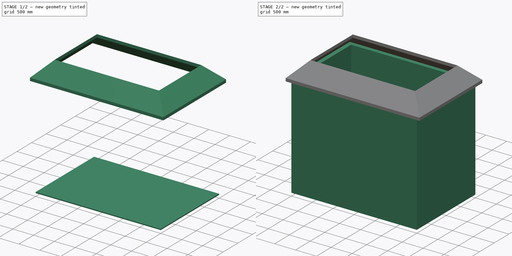
[diagram: build sequence overview — one tinted view per stage of 2, left to right]
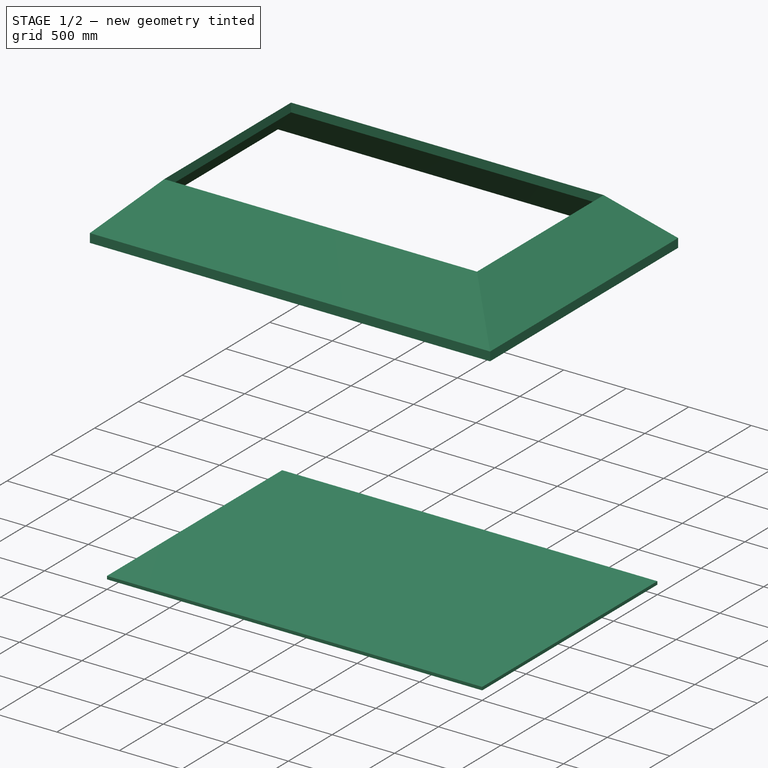
[diagram: stage 1 of 2 — iso view after this stage's code; geometry added in this stage tinted green]
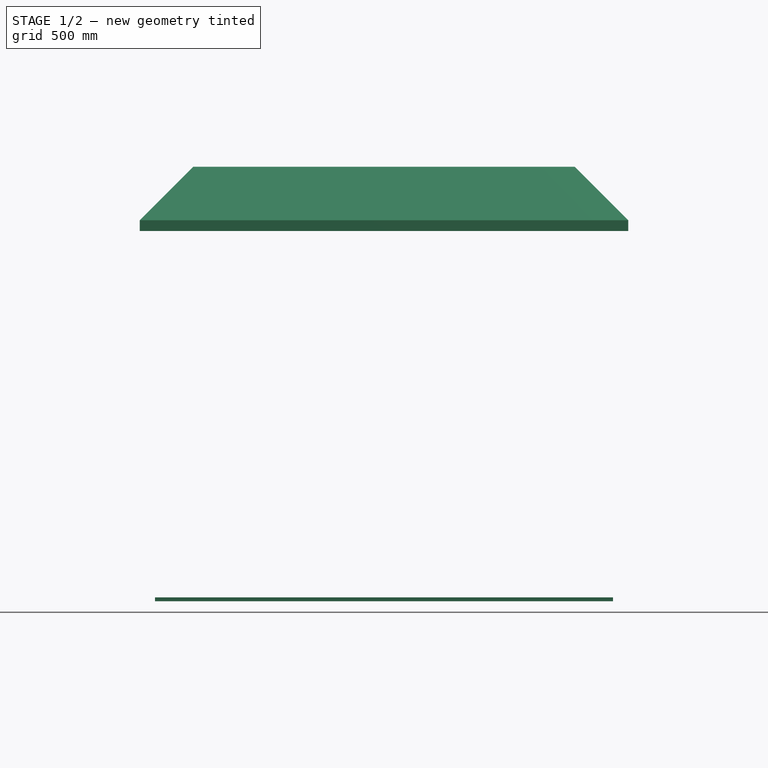
[diagram: stage 1 of 2 — front view after this stage's code; geometry added in this stage tinted green]
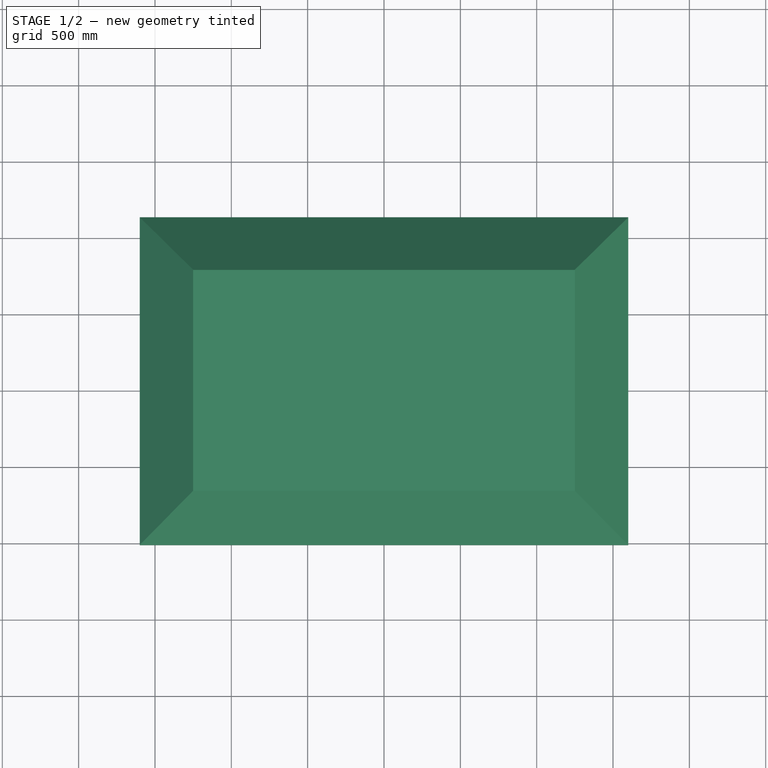
[diagram: stage 1 of 2 — top view after this stage's code; geometry added in this stage tinted green]
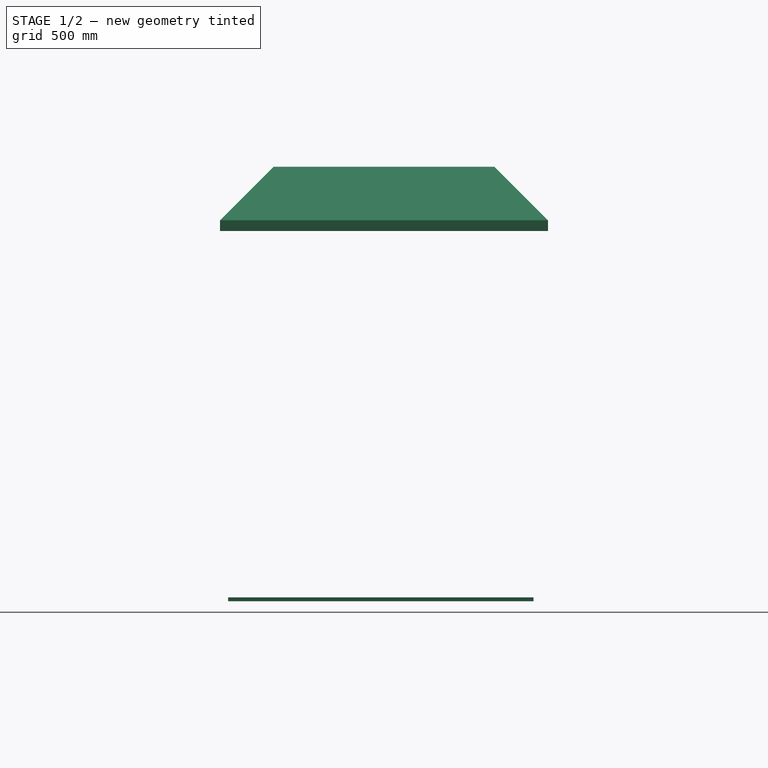
[diagram: stage 1 of 2 — right view after this stage's code; geometry added in this stage tinted green]
FCSTD DOCUMENT  (FreeCAD 0.21R33668 +26 (Git))
Label: LabritDeJardin
License: All rights reserved
LicenseURL: http://en.wikipedia.org/wiki/All_rights_reserved
objects: Part::FeaturePython×3, Sketcher::SketchObject×2, Part::Part2DObjectPython×1
note: 6 computed .brp shape members not serialized (recipe doc carries the construction recipe); baked Part::Feature solids carry a one-line shape summary decoded from their .brp

FEATURE [Sketcher::SketchObject] Sketch
  FullyConstrained = true
  sketch-geometry (4):
    g0: LineSegment StartX=0 StartY=2000 StartZ=0 EndX=3000 EndY=2000 EndZ=0
    g1: LineSegment StartX=3000 StartY=2000 StartZ=0 EndX=3000 EndY=0 EndZ=0
    g2: LineSegment StartX=3000 StartY=0 StartZ=0 EndX=0 EndY=0 EndZ=0
    g3: LineSegment StartX=0 StartY=0 StartZ=0 EndX=0 EndY=2000 EndZ=0
  constraints (11):
    c: Coincident(g0,g1)
    c: Coincident(g1,g2)
    c: Coincident(g2,g3)
    c: Coincident(g3,g0)
    c: Horizontal(g0)
    c: Horizontal(g2)
    c: Vertical(g1)
    c: Vertical(g3)
    c: DistanceX(g0,g0) = 3000
    c: DistanceY(g1,g1) = 2000
    c: Coincident(g2,g-1)
FEATURE [Part::FeaturePython] Structure  # Arch/BIM 13 (typed FeaturePython)
  Base = -> Sketch
  BaseMirror = false
  BaseOffsetX = 0
  BaseOffsetY = 0
  BasePerpendicularToTool = false
  BaseRotation = 0
  ComputedLength = 25
  FaceMaker = 0
  Height = 25
  HorizontalArea = 6000000
  IfcData = attributes={"GlobalId": {"name": "GlobalId", "type": "IfcGloballyUniqueId", "is_enum": false, "enum_values": []}, "Description": {"... (+484 chars omitted),+1 more (map truncated)
  IfcType = 13
  Length = 0
  MoveBase = false
  MoveWithHost = false
  Nodes = (2) [(1500,1000,0),(1500,1000,-25)]
  NodesOffset = 0
  Normal = (0,0,0)
  PerimeterLength = 10000
  PredefinedType = 0
  ToolOffsetFirst = 0
  ToolOffsetLast = 0
  VerticalArea = 250000
  Width = 100
FEATURE [Part::Part2DObjectPython] Rectangle  # Draft 2D object (typed FeaturePython)
  Area = 5.84272e+06
  ChamferSize = 0
  Columns = 1
  FilletRadius = 0
  Height = 1947.57
  Length = 3000
  MakeFace = true
  Placement = pos=(0,47.2886,2500) rot=(0,0,1;0rad)
  Rows = 1
FEATURE [Part::FeaturePython] Roof  # Arch/BIM 113 (typed FeaturePython)
  Angles = [45,45,45,45]
  Base = -> Rectangle
  BorderLength = 18590.3
  Face = 0
  Flip = false
  Heights = [250,250,250,250]
  HorizontalArea = 3.2533e+06
  IdRel = [-1,-1,-1,-1]
  IfcData = attributes={"GlobalId": {"name": "GlobalId", "type": "IfcGloballyUniqueId", "is_enum": false, "enum_values": []}, "Description": {"... (+613 chars omitted),+1 more (map truncated)
  IfcType = 113
  MoveBase = false
  MoveWithHost = false
  Overhang = [100,100,100,100]
  PerimeterLength = 0
  PredefinedType = 11
  RidgeLength = 2424.87
  Runs = [250,250,250,250]
  Thickness = [50,50,50,50]
  VerticalArea = 1.31453e+06
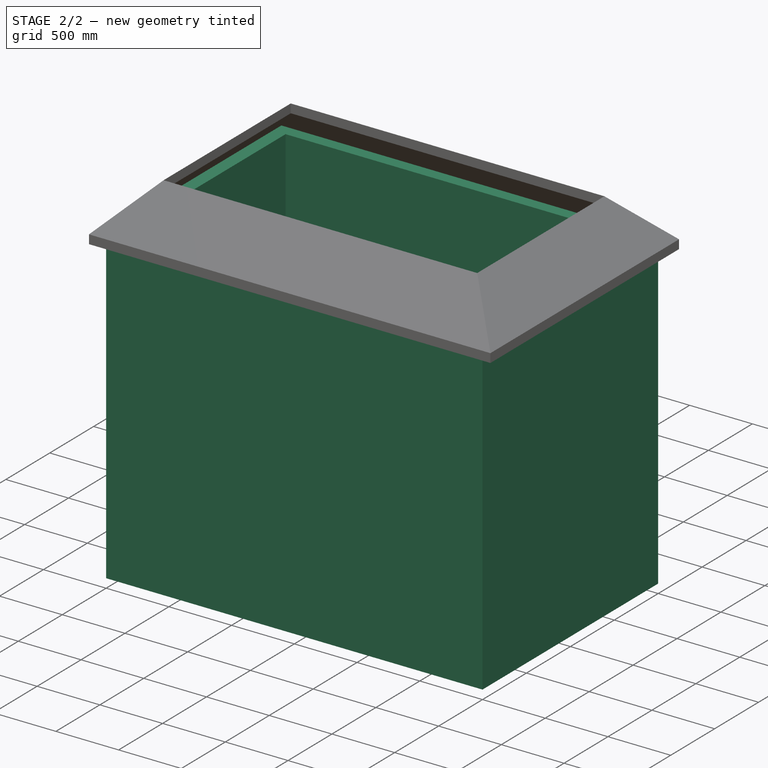
[diagram: stage 2 of 2 — iso view after this stage's code; geometry added in this stage tinted green]
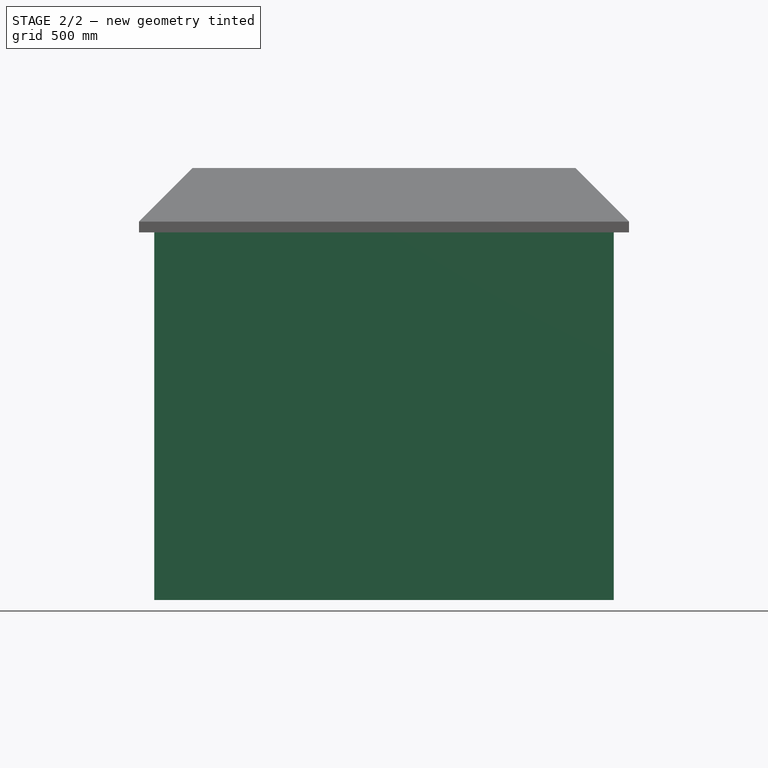
[diagram: stage 2 of 2 — front view after this stage's code; geometry added in this stage tinted green]
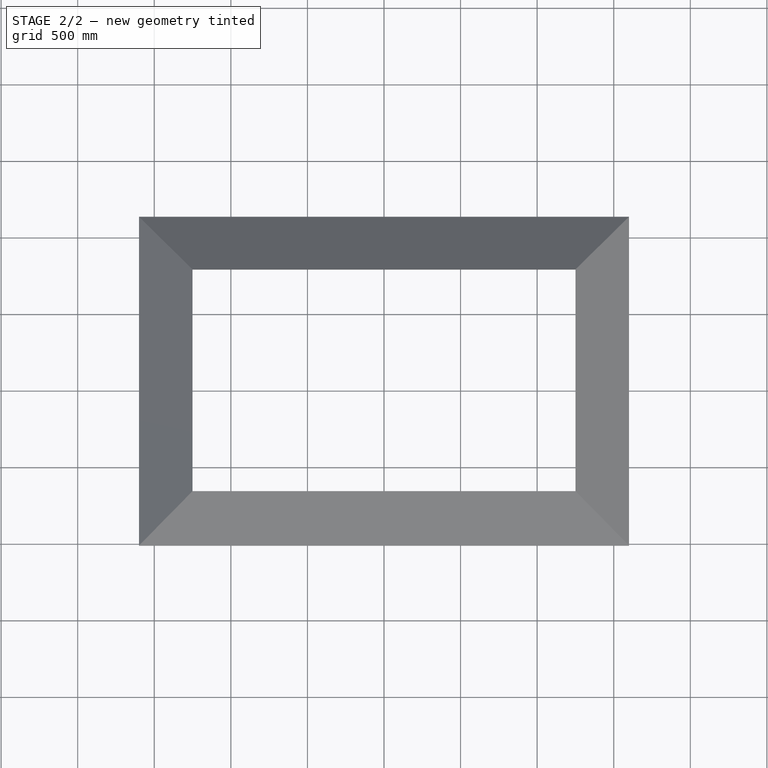
[diagram: stage 2 of 2 — top view after this stage's code; geometry added in this stage tinted green]
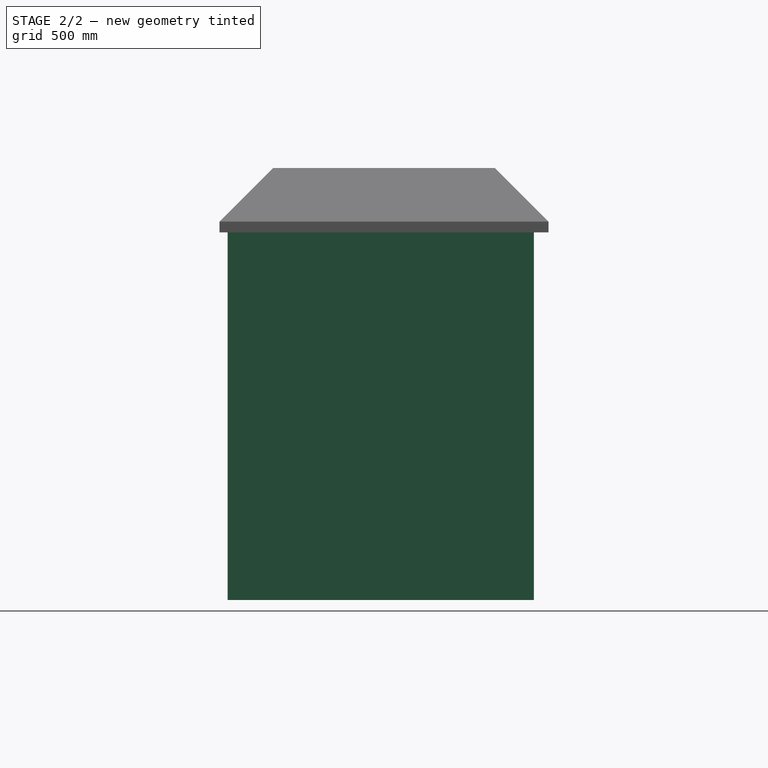
[diagram: stage 2 of 2 — right view after this stage's code; geometry added in this stage tinted green]
FEATURE [Sketcher::SketchObject] Sketch001
  ExternalGeometry = -> [Structure]
  FullyConstrained = true
  MapMode = 5
  Support = -> [Structure]
  sketch-geometry (4):
    g0: LineSegment StartX=0 StartY=2000 StartZ=0 EndX=3000 EndY=2000 EndZ=0
    g1: LineSegment StartX=3000 StartY=2000 StartZ=0 EndX=3000 EndY=0 EndZ=0
    g2: LineSegment StartX=3000 StartY=0 StartZ=0 EndX=0 EndY=0 EndZ=0
    g3: LineSegment StartX=0 StartY=0 StartZ=0 EndX=0 EndY=2000 EndZ=0
  constraints (10):
    c: Coincident(g0,g1)
    c: Coincident(g1,g2)
    c: Coincident(g2,g3)
    c: Coincident(g3,g0)
    c: Horizontal(g0)
    c: Horizontal(g2)
    c: Vertical(g1)
    c: Vertical(g3)
    c: Coincident(g2,g-3)
    c: Coincident(g0,g-4)
FEATURE [Part::FeaturePython] Wall  # Arch/BIM 166 (typed FeaturePython)
  Align = 0
  Area = 25000000
  Base = -> Sketch001
  BlockHeight = 0
  BlockLength = 0
  CountBroken = 0
  CountEntire = 0
  Face = 0
  Height = 2500
  HorizontalArea = 960000
  IfcData = attributes={"GlobalId": {"name": "GlobalId", "type": "IfcGloballyUniqueId", "is_enum": false, "enum_values": []}, "Description": {"... (+533 chars omitted),+1 more (map truncated)
  IfcType = 166
  Joint = 0
  Length = 10000
  MakeBlocks = false
  MoveBase = false
  MoveWithHost = false
  Normal = (0,0,0)
  OffsetFirst = 0
  OffsetSecond = 0
  PerimeterLength = 10000
  PredefinedType = 0
  VerticalArea = 48000000
  Width = 100
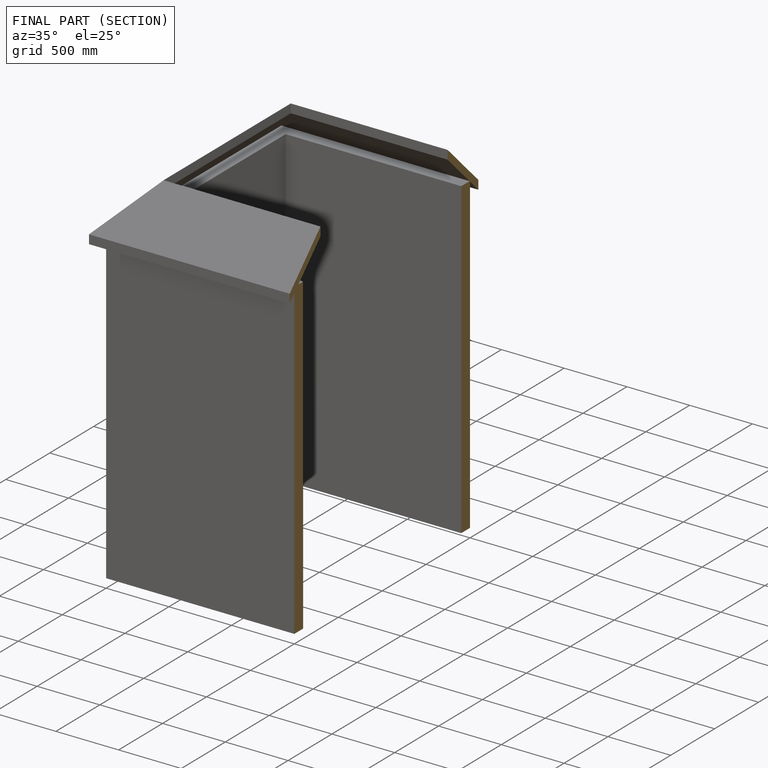
[diagram: finished part — half-section view (interior)]
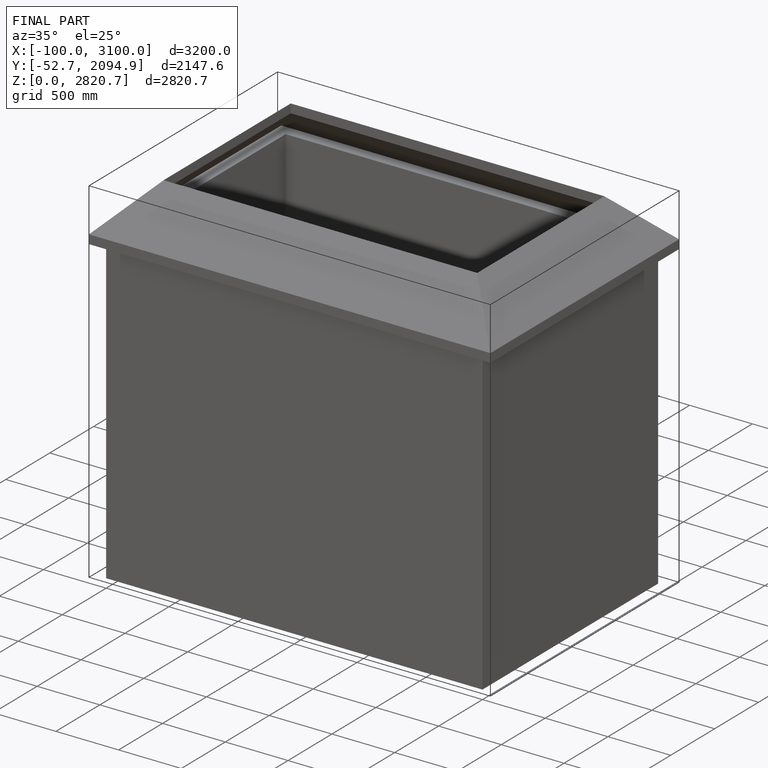
[diagram: finished part — iso view with bounding-box wireframe]
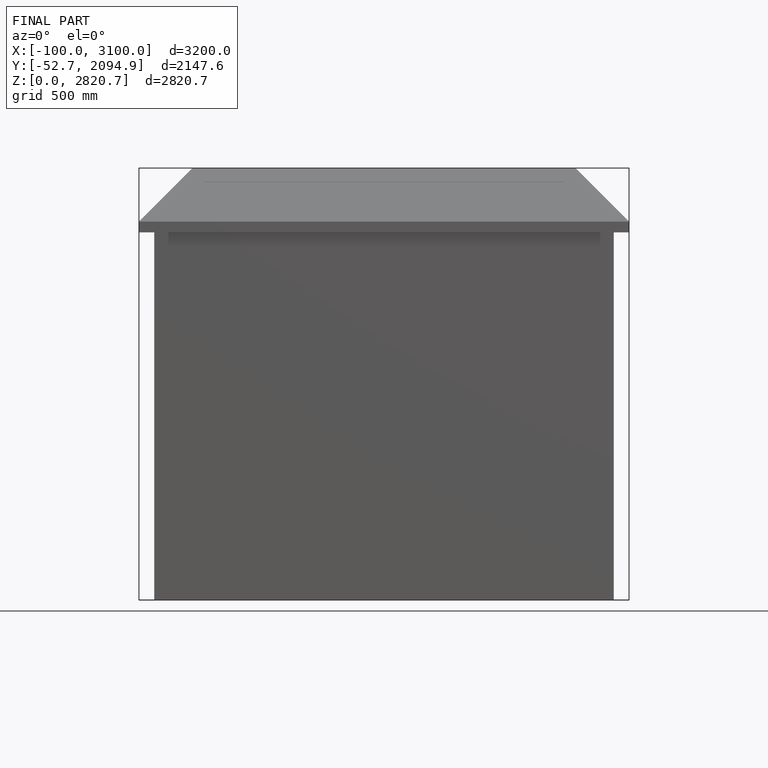
[diagram: finished part — front view with bounding-box wireframe]
